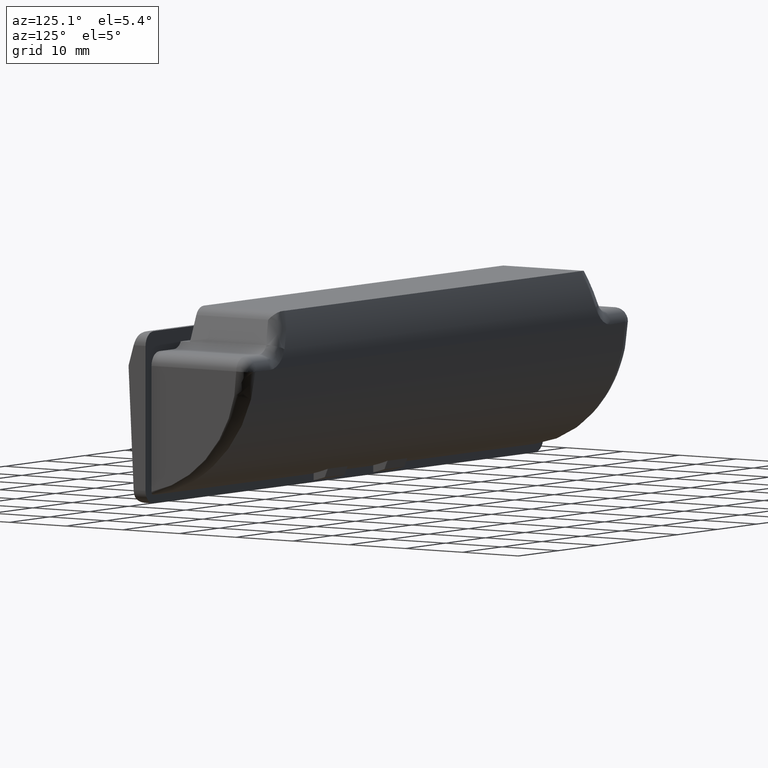
[diagram: clean part render]
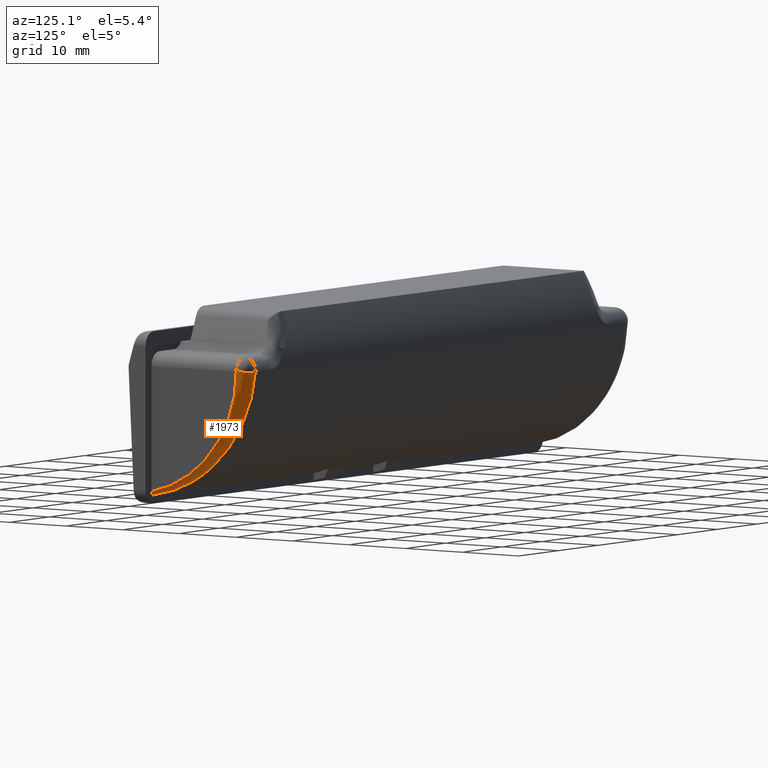
[diagram: same view with one face highlighted and labeled with its STEP entity id]
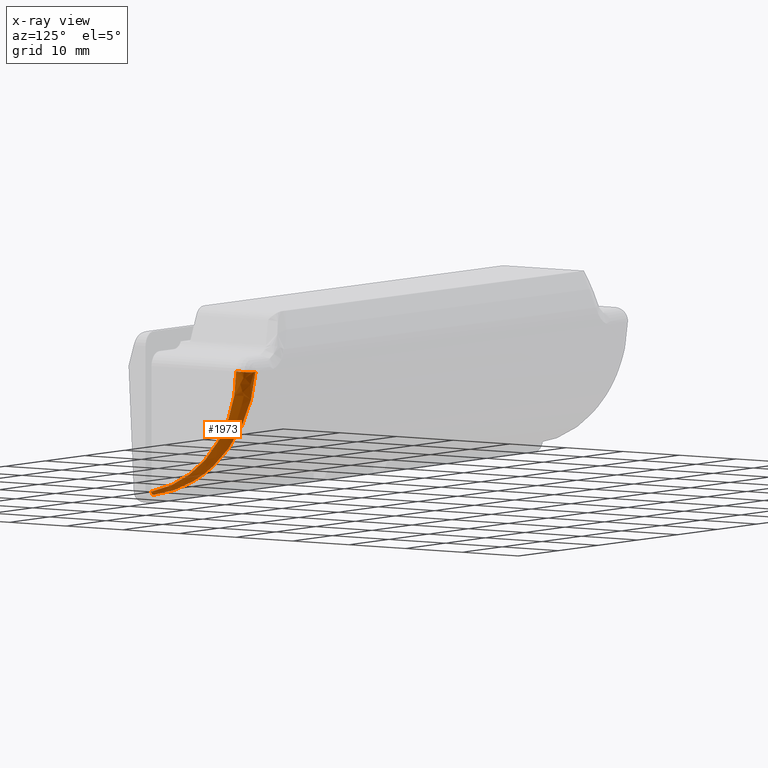
[diagram: x-ray of the same camera — body ghosted, the highlighted face saturated]
A machine part, auxiliary view. The second image highlights one B-rep face of the part: STEP entity #1973.
The next image is the same camera in x-ray: the body ghosted, the highlighted face saturated — about 0% of this face is hidden behind the body in this view.
In plain terms, the highlighted face is a freeform B-spline surface patch.
Its self-contained STEP definition (entity closure, byte-faithful):
#3 = CARTESIAN_POINT ( 'NONE',  ( 48.14453971934678800, 16.14699343148756900, 7.687491268555645800 ) ) ;
#4 = CARTESIAN_POINT ( 'NONE',  ( 48.50000000000000000, 0.0000000000000000000, -10.51314902024915900 ) ) ;
#19 = CARTESIAN_POINT ( 'NONE',  ( 48.50000000000000000, 13.27211901826445300, -0.04792067468070863200 ) ) ;
#40 = CARTESIAN_POINT ( 'NONE',  ( 47.02500000005229500, 14.35171165252480000, -1.478453074553169900 ) ) ;
#92 = CARTESIAN_POINT ( 'NONE',  ( 47.99999840140579700, 0.0000000000000000000, -11.02372000000020000 ) ) ;
#152 = CARTESIAN_POINT ( 'NONE',  ( 48.50000000000000000, 14.97220075561143900, 7.749999999999889900 ) ) ;
#172 = CARTESIAN_POINT ( 'NONE',  ( 48.41581068458559400, 15.61797106969466100, 7.715269846173489700 ) ) ;
#187 = CARTESIAN_POINT ( 'NONE',  ( 48.50000000000000700, 2.664603827462808100, -9.800388386499923500 ) ) ;
#253 = CARTESIAN_POINT ( 'NONE',  ( 48.50000000003335300, 7.688929197786813500, -8.321905053972649600 ) ) ;
#290 = EDGE_CURVE ( 'NONE', #570, #1434, #2607, .T. ) ;
#407 = CARTESIAN_POINT ( 'NONE',  ( 48.50000000000000000, 14.98384170641042200, 5.596714867299289700 ) ) ;
#450 = CARTESIAN_POINT ( 'NONE',  ( 48.50000000000000000, 15.30509552455368900, 7.731477239572881500 ) ) ;
#488 = CARTESIAN_POINT ( 'NONE',  ( 47.81249999991990100, 3.368735777593610000, -10.35869839015476000 ) ) ;
#501 = CARTESIAN_POINT ( 'NONE',  ( 48.50000000001671900, 9.664106592515679500, -6.912807978859064000 ) ) ;
#508 = CARTESIAN_POINT ( 'NONE',  ( 48.50000000024866900, 16.83642165302634900, 5.254152215687619300 ) ) ;
#521 = CARTESIAN_POINT ( 'NONE',  ( 48.49999999996696000, 16.27221658306091400, 2.894676136289115100 ) ) ;
#538 = CARTESIAN_POINT ( 'NONE',  ( 48.50000000000000700, 1.088505736779321800, -10.27969701181376100 ) ) ;
#544 = CARTESIAN_POINT ( 'NONE',  ( 48.50000000000000000, 4.404229033317497200, -9.015216418144181200 ) ) ;
#570 = VERTEX_POINT ( 'NONE', #4 ) ;
#576 = VERTEX_POINT ( 'NONE', #809 ) ;
#600 = CARTESIAN_POINT ( 'NONE',  ( 48.45183410195461700, -0.0000000000000000000, -10.77325662892485200 ) ) ;
#649 = CARTESIAN_POINT ( 'NONE',  ( 48.50000000000000000, 14.60424442433862100, 3.417706727118405000 ) ) ;
#655 = CARTESIAN_POINT ( 'NONE',  ( 48.50000000000000000, 14.97220075561143900, 7.749999999999889900 ) ) ;
#661 = CARTESIAN_POINT ( 'NONE',  ( 48.50000000000000000, 13.07832457476719900, -0.7097553300159240600 ) ) ;
#676 = CARTESIAN_POINT ( 'NONE',  ( 48.50000000000000000, 11.93215680177609900, -2.656969856369345400 ) ) ;
#692 = CARTESIAN_POINT ( 'NONE',  ( 48.50000000000000000, 14.98322649248295900, 5.670927442224863700 ) ) ;
#699 = CARTESIAN_POINT ( 'NONE',  ( 48.50000000000000000, 14.97220075561143900, 7.749999999999889900 ) ) ;
#722 = CARTESIAN_POINT ( 'NONE',  ( 48.50000000000000700, 14.64370203373862200, 3.643128193991342000 ) ) ;
#729 = EDGE_CURVE ( 'NONE', #739, #576, #2321, .T. ) ;
#739 = VERTEX_POINT ( 'NONE', #2211 ) ;
#778 = CARTESIAN_POINT ( 'NONE',  ( 48.50000000000000700, 13.86503464222082900, 1.417093612321909600 ) ) ;
#789 = CARTESIAN_POINT ( 'NONE',  ( 47.15624999994780400, 12.99595222315608100, -3.490615264160960200 ) ) ;
#795 = CARTESIAN_POINT ( 'NONE',  ( 48.50000000000000700, 13.91049771348045800, 1.543069384130982800 ) ) ;
#809 = CARTESIAN_POINT ( 'NONE',  ( 47.99999840140579700, 0.0000000000000000000, -11.02372000000020000 ) ) ;
#844 = CARTESIAN_POINT ( 'NONE',  ( 48.50000000000000000, 0.0000000000000000000, -10.51314902024915900 ) ) ;
#896 = CARTESIAN_POINT ( 'NONE',  ( 48.50000000000000700, 8.305550541137964900, -6.546907448180826700 ) ) ;
#923 = ORIENTED_EDGE ( 'NONE', *, *, #290, .F. ) ;
#938 = CARTESIAN_POINT ( 'NONE',  ( 48.50000000000002100, 13.77268521928726800, 1.169546453274866500 ) ) ;
#960 = CARTESIAN_POINT ( 'NONE',  ( 47.87499853462217900, 2.248673816632060800, -10.68255896560201300 ) ) ;
#965 = CARTESIAN_POINT ( 'NONE',  ( 48.49999999998355800, 12.99595222319444900, -3.490615264177586100 ) ) ;
#1012 = CARTESIAN_POINT ( 'NONE',  ( 47.55000000008029600, 7.688929197880090000, -8.321905054018159800 ) ) ;
#1032 = B_SPLINE_CURVE_WITH_KNOTS ( 'NONE', 3,
 ( #92, #1815, #2074, #600, #2315, #844 ),
 .UNSPECIFIED., .F., .F.,
 ( 4, 2, 4 ),
 ( 0.0000000000000000000, 0.5000000000000000000, 1.000000000000000000 ),
 .UNSPECIFIED. ) ;
#1133 = CARTESIAN_POINT ( 'NONE',  ( 48.50000000000000000, 8.990385948231610400, -6.054808352558220400 ) ) ;
#1162 = CARTESIAN_POINT ( 'NONE',  ( 48.50000000000000000, 12.45036105483619500, -1.689214871263243500 ) ) ;
#1198 = CARTESIAN_POINT ( 'NONE',  ( 48.49999999999999300, 9.655722833883905000, -5.250018952573216600 ) ) ;
#1241 = EDGE_CURVE ( 'NONE', #1434, #739, #1425, .T. ) ;
#1343 = CARTESIAN_POINT ( 'NONE',  ( 48.50000000000015600, -1.355138389123566900, -11.18224599188619600 ) ) ;
#1379 = CARTESIAN_POINT ( 'NONE',  ( 48.50000000000000000, 7.195380695640090500, -7.504306335968220100 ) ) ;
#1392 = CARTESIAN_POINT ( 'NONE',  ( 48.49999999999998600, 11.56567616892138300, -3.001887239680182800 ) ) ;
#1402 = CARTESIAN_POINT ( 'NONE',  ( 46.62499986678381700, 16.84275603574994300, 5.367995019118451300 ) ) ;
#1410 = CARTESIAN_POINT ( 'NONE',  ( 48.50000000000000700, 10.81200204585438800, -3.939315901665974000 ) ) ;
#1417 = CARTESIAN_POINT ( 'NONE',  ( 48.50000000000000000, 3.163986119900080100, -9.695153654708880400 ) ) ;
#1425 = B_SPLINE_CURVE_WITH_KNOTS ( 'NONE', 3,
 ( #699, #450, #172, #3, #3259, #3235, #3213, #3181, #3155, #3138 ),
 .UNSPECIFIED., .F., .F.,
 ( 4, 2, 2, 2, 4 ),
 ( 0.0000000000000000000, 0.2500000000000010000, 0.5000000000000006700, 0.7500000000000003300, 1.000000000000000000 ),
 .UNSPECIFIED. ) ;
#1427 = CARTESIAN_POINT ( 'NONE',  ( 48.50000000000070300, 0.9291400671703170500, -10.43556836893867900 ) ) ;
#1434 = VERTEX_POINT ( 'NONE', #3092 ) ;
#1519 = CARTESIAN_POINT ( 'NONE',  ( 47.41875000005250500, 9.664106592554020400, -6.912807978875699500 ) ) ;
#1633 = CARTESIAN_POINT ( 'NONE',  ( 48.50000000000000700, 13.63040439911050700, 0.8001871986345876500 ) ) ;
#1643 = ORIENTED_EDGE ( 'NONE', *, *, #1241, .F. ) ;
#1718 = CARTESIAN_POINT ( 'NONE',  ( 48.50000000000000000, 5.606093721451461700, -8.361566670040184900 ) ) ;
#1728 = CARTESIAN_POINT ( 'NONE',  ( 47.94373364018910900, 1.025194808434682000, -10.98581460631372100 ) ) ;
#1745 = CARTESIAN_POINT ( 'NONE',  ( 48.07500000000000300, -1.355138389123476100, -11.18224599188622100 ) ) ;
#1815 = CARTESIAN_POINT ( 'NONE',  ( 48.13936411760459300, 0.0000000000000000000, -11.02336125047601800 ) ) ;
#1841 =( BOUNDED_SURFACE ( )  B_SPLINE_SURFACE ( 2, 3, ( 
 ( #3133, #1427, #1417, #1379, #1133, #676, #661, #649, #407, #152 ),
 ( #1343, #2988, #2510, #253, #501, #965, #3251, #521, #508, #2460 ),
 ( #1745, #1728, #488, #1012, #1519, #789, #40, #3047, #2256, #2508 ) ),
 .UNSPECIFIED., .F., .F., .F. ) 
 B_SPLINE_SURFACE_WITH_KNOTS ( ( 3, 3 ),
 ( 4, 2, 2, 2, 4 ),
 ( 0.0000000000000000000, 1.000000000000000000 ),
 ( 0.08233607821444119400, 0.4405550970393240000, 0.7987741158642069900, 1.156993134689089800, 1.515212153513975100 ),
 .UNSPECIFIED. ) 
 GEOMETRIC_REPRESENTATION_ITEM ( )  RATIONAL_B_SPLINE_SURFACE ( (
 ( 1.000000000000000000, 1.000000000000000000, 1.000000000000000000, 1.000000000000000000, 1.000000000000000000, 1.000000000000000000, 1.000000000000000000, 1.000000000000000000, 1.000000000000000000, 1.000000000000000000),
 ( 0.7071067811865759900, 0.7071067811865759900, 0.7071067811865220400, 0.7071067811865220400, 0.7071067811865480200, 0.7071067811865480200, 0.7071067811865620100, 0.7071067811865620100, 0.7071067811865610100, 0.7071067811865610100),
 ( 1.000000000000000000, 1.000000000000000000, 1.000000000000000000, 1.000000000000000000, 1.000000000000000000, 1.000000000000000000, 1.000000000000000000, 1.000000000000000000, 1.000000000000000000, 1.000000000000000000) ) ) 
 REPRESENTATION_ITEM ( '' )  SURFACE ( )  );
#1866 = ORIENTED_EDGE ( 'NONE', *, *, #2418, .F. ) ;
#1873 = CARTESIAN_POINT ( 'NONE',  ( 48.50000000000000700, 10.28950216342721700, -4.557334718949309000 ) ) ;
#1895 = CARTESIAN_POINT ( 'NONE',  ( 46.74999973356775500, 16.32534469881149900, 3.119371522013152800 ) ) ;
#1973 = ADVANCED_FACE ( 'NONE', ( #2400 ), #1841, .T. ) ;
#2074 = CARTESIAN_POINT ( 'NONE',  ( 48.25917050977324900, -0.0000000000000000000, -10.97172682387665600 ) ) ;
#2077 = ORIENTED_EDGE ( 'NONE', *, *, #729, .F. ) ;
#2211 = CARTESIAN_POINT ( 'NONE',  ( 46.50000000000000000, 16.96911195067934800, 7.638888888888760500 ) ) ;
#2253 = CARTESIAN_POINT ( 'NONE',  ( 48.50000000000000700, 10.72548225866993800, -4.044653605433619100 ) ) ;
#2256 = CARTESIAN_POINT ( 'NONE',  ( 46.63126635941460300, 16.83642170267319900, 5.254153113410230200 ) ) ;
#2315 = CARTESIAN_POINT ( 'NONE',  ( 48.49999999999999300, 0.0000000000000000000, -10.65346286082370000 ) ) ;
#2321 = B_SPLINE_CURVE_WITH_KNOTS ( 'NONE', 3,
 ( #2623, #1402, #1895, #2503, #2487, #3166, #2421, #2475, #960, #2636 ),
 .UNSPECIFIED., .F., .F.,
 ( 4, 2, 2, 2, 4 ),
 ( 0.0000000000000000000, 0.2500000000000000000, 0.5000000000000000000, 0.7500000000000000000, 1.000000000000000000 ),
 .UNSPECIFIED. ) ;
#2384 = CARTESIAN_POINT ( 'NONE',  ( 48.49999999999999300, 5.842807334199420700, -8.222497035018379900 ) ) ;
#2400 = FACE_OUTER_BOUND ( 'NONE', #2891, .T. ) ;
#2418 = EDGE_CURVE ( 'NONE', #576, #570, #1032, .T. ) ;
#2421 = CARTESIAN_POINT ( 'NONE',  ( 47.49999893427059300, 8.447948616097063400, -7.806491091659475900 ) ) ;
#2449 = CARTESIAN_POINT ( 'NONE',  ( 48.50000000000000000, 10.55227041533939700, -4.250990050434754900 ) ) ;
#2460 = CARTESIAN_POINT ( 'NONE',  ( 48.50000000000012800, 16.96911195067929200, 7.638888888888765800 ) ) ;
#2475 = CARTESIAN_POINT ( 'NONE',  ( 47.74999866783824100, 4.438089436433053000, -9.954217447426700000 ) ) ;
#2487 = CARTESIAN_POINT ( 'NONE',  ( 47.12499933391922000, 13.32766100286753600, -3.022018134561161000 ) ) ;
#2503 = CARTESIAN_POINT ( 'NONE',  ( 46.99999946713539600, 14.56759984739042800, -1.076106064304716700 ) ) ;
#2508 = CARTESIAN_POINT ( 'NONE',  ( 46.50000000000000000, 16.96911195067934800, 7.638888888888769400 ) ) ;
#2510 = CARTESIAN_POINT ( 'NONE',  ( 48.49999999996701700, 3.368735777686866500, -10.35869839020039700 ) ) ;
#2607 = B_SPLINE_CURVE_WITH_KNOTS ( 'NONE', 3,
 ( #2937, #538, #187, #544, #2710, #1718, #2384, #2642, #2700, #896, #1198, #1873, #2449, #2253, #1410, #1392, #1162, #19, #1633, #938, #778, #795, #722, #692, #655 ),
 .UNSPECIFIED., .F., .F.,
 ( 4, 1, 1, 1, 2, 2, 1, 1, 1, 2, 2, 1, 1, 1, 2, 2, 4 ),
 ( 0.0000000000000000000, 0.1250000000000000600, 0.1875000000000000600, 0.2187500000000000000, 0.2343750000000000000, 0.2499999999999999700, 0.3749999999999998300, 0.4374999999999996700, 0.4687499999999996700, 0.4843749999999996100, 0.4999999999999995600, 0.6249999999999998900, 0.6875000000000002200, 0.7187500000000003300, 0.7343750000000003300, 0.7500000000000003300, 1.000000000000000000 ),
 .UNSPECIFIED. ) ;
#2623 = CARTESIAN_POINT ( 'NONE',  ( 46.50000000000000000, 16.96911195067934800, 7.638888888888760500 ) ) ;
#2636 = CARTESIAN_POINT ( 'NONE',  ( 47.99999840140579700, 0.0000000000000000000, -11.02372000000020000 ) ) ;
#2642 = CARTESIAN_POINT ( 'NONE',  ( 48.50000000000000000, 5.961639515047690600, -8.150960300979994200 ) ) ;
#2700 = CARTESIAN_POINT ( 'NONE',  ( 48.49999999999997900, 7.006636632511330700, -7.506846207318411700 ) ) ;
#2710 = CARTESIAN_POINT ( 'NONE',  ( 48.50000000000000700, 5.249252661259024700, -8.566135790927244600 ) ) ;
#2891 = EDGE_LOOP ( 'NONE', ( #1866, #2077, #1643, #923 ) ) ;
#2937 = CARTESIAN_POINT ( 'NONE',  ( 48.50000000000000000, 0.0000000000000000000, -10.51314902024915900 ) ) ;
#2988 = CARTESIAN_POINT ( 'NONE',  ( 48.49999999996706600, 1.025195704453749400, -10.98581453240955600 ) ) ;
#3047 = CARTESIAN_POINT ( 'NONE',  ( 46.76249999994809800, 16.27221658299619700, 2.894676136302380100 ) ) ;
#3092 = CARTESIAN_POINT ( 'NONE',  ( 48.50000000000000000, 14.97220075561143900, 7.749999999999889900 ) ) ;
#3133 = CARTESIAN_POINT ( 'NONE',  ( 48.50000000000000000, -1.390091698354690000, -10.75868576455863800 ) ) ;
#3138 = CARTESIAN_POINT ( 'NONE',  ( 46.50000000000000000, 16.96911195067934800, 7.638888888888760500 ) ) ;
#3155 = CARTESIAN_POINT ( 'NONE',  ( 46.69040948291790700, 16.96911224497566600, 7.638894178040851000 ) ) ;
#3166 = CARTESIAN_POINT ( 'NONE',  ( 47.37499906748688300, 10.26749183427528000, -6.387588487352831900 ) ) ;
#3181 = CARTESIAN_POINT ( 'NONE',  ( 46.89939367353230200, 16.94190174124224100, 7.641210366034086700 ) ) ;
#3213 = CARTESIAN_POINT ( 'NONE',  ( 47.32951543177513500, 16.80333969531571000, 7.650467112688186700 ) ) ;
#3235 = CARTESIAN_POINT ( 'NONE',  ( 47.55072032602309000, 16.69147944740304000, 7.657407782976680000 ) ) ;
#3251 = CARTESIAN_POINT ( 'NONE',  ( 48.50000000003322500, 14.35171165246005000, -1.478453074539847600 ) ) ;
#3259 = CARTESIAN_POINT ( 'NONE',  ( 47.95839674991626100, 16.36363770297985500, 7.675919749246204100 ) ) ;